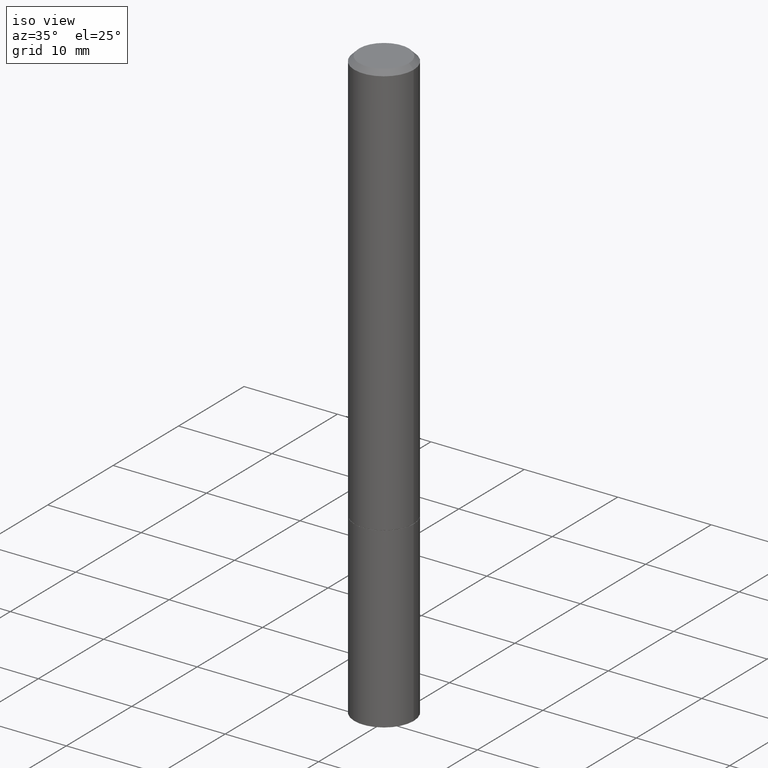
[diagram: clean part render]
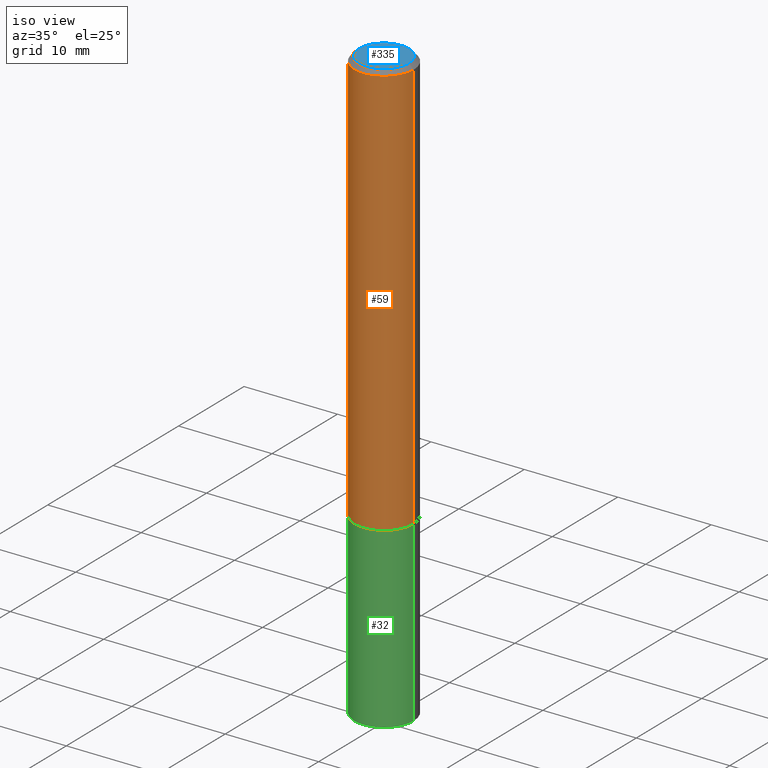
[diagram: same view with three faces highlighted in distinct colors, each labeled with its STEP entity id]
A machine part, iso view with three faces highlighted in distinct colors.
Their STEP definitions:

[orange] entity #59 — the highlighted cylindrical surface (edge-blend (fillet) strip) has radius 3.175 mm, axis along (-0, 0, 1).
#5 = CYLINDRICAL_SURFACE ( 'NONE', #26, 0.1249999999999999029 ) ;
#26 = AXIS2_PLACEMENT_3D ( 'NONE', #192, #254, #126 ) ;
#30 = EDGE_CURVE ( 'NONE', #213, #282, #301, .T. ) ;
#34 = DIRECTION ( 'NONE',  ( -2.445468806185136597E-29, 3.491481338843145583E-15, 1.000000000000000000 ) ) ;
#59 = ADVANCED_FACE ( 'NONE', ( #91 ), #5, .T. ) ;
#82 = LINE ( 'NONE', #286, #136 ) ;
#91 = FACE_OUTER_BOUND ( 'NONE', #313, .T. ) ;
#96 = DIRECTION ( 'NONE',  ( 1.000000000000000000, -6.982962677686266711E-15, 0.000000000000000000 ) ) ;
#102 = CARTESIAN_POINT ( 'NONE',  ( 0.1250000000000000000, -6.979471196347445792E-15, -1.749000000000000110 ) ) ;
#120 = CARTESIAN_POINT ( 'NONE',  ( 4.277124942017804562E-29, -6.106600861636661664E-15, -1.749000000000000110 ) ) ;
#125 = EDGE_CURVE ( 'NONE', #303, #205, #331, .T. ) ;
#126 = DIRECTION ( 'NONE',  ( 1.000000000000000000, -6.982962677686266711E-15, 4.876176775795935793E-29 ) ) ;
#129 = DIRECTION ( 'NONE',  ( -2.445468806185136597E-29, 3.491481338843145583E-15, 1.000000000000000000 ) ) ;
#130 = ORIENTED_EDGE ( 'NONE', *, *, #173, .F. ) ;
#134 = CARTESIAN_POINT ( 'NONE',  ( -0.1249999999999999029, 8.881784197001245421E-16, -6.148668862818627323E-30 ) ) ;
#136 = VECTOR ( 'NONE', #144, 39.37007874015748143 ) ;
#144 = DIRECTION ( 'NONE',  ( -2.445468806185136877E-29, 3.491481338843145188E-15, 1.000000000000000000 ) ) ;
#146 = AXIS2_PLACEMENT_3D ( 'NONE', #253, #34, #96 ) ;
#152 = EDGE_CURVE ( 'NONE', #205, #282, #82, .T. ) ;
#173 = EDGE_CURVE ( 'NONE', #303, #213, #239, .T. ) ;
#182 = CARTESIAN_POINT ( 'NONE',  ( 0.1249999999999997918, -9.273918764983031658E-16, -0.02000000000000003511 ) ) ;
#184 = AXIS2_PLACEMENT_3D ( 'NONE', #120, #129, #222 ) ;
#192 = CARTESIAN_POINT ( 'NONE',  ( 0.000000000000000000, 0.000000000000000000, 0.000000000000000000 ) ) ;
#198 = DIRECTION ( 'NONE',  ( -2.445468806185136877E-29, 3.491481338843145188E-15, 1.000000000000000000 ) ) ;
#205 = VERTEX_POINT ( 'NONE', #102 ) ;
#213 = VERTEX_POINT ( 'NONE', #230 ) ;
#222 = DIRECTION ( 'NONE',  ( 1.000000000000000000, -6.982962677686270655E-15, 0.000000000000000000 ) ) ;
#230 = CARTESIAN_POINT ( 'NONE',  ( -0.1249999999999997918, 8.030407079339188573E-16, -0.02000000000000003511 ) ) ;
#232 = ORIENTED_EDGE ( 'NONE', *, *, #30, .F. ) ;
#239 = LINE ( 'NONE', #134, #277 ) ;
#253 = CARTESIAN_POINT ( 'NONE',  ( 4.890937612370281041E-31, -6.982962677686302702E-17, -0.02000000000000003511 ) ) ;
#254 = DIRECTION ( 'NONE',  ( -2.445468806185136597E-29, 3.491481338843145583E-15, 1.000000000000000000 ) ) ;
#268 = ORIENTED_EDGE ( 'NONE', *, *, #152, .T. ) ;
#277 = VECTOR ( 'NONE', #198, 39.37007874015748143 ) ;
#282 = VERTEX_POINT ( 'NONE', #182 ) ;
#286 = CARTESIAN_POINT ( 'NONE',  ( 0.1249999999999999029, -8.728703347107826486E-16, 6.095220969744914837E-30 ) ) ;
#301 = CIRCLE ( 'NONE', #146, 0.1249999999999997918 ) ;
#303 = VERTEX_POINT ( 'NONE', #322 ) ;
#313 = EDGE_LOOP ( 'NONE', ( #130, #340, #268, #232 ) ) ;
#322 = CARTESIAN_POINT ( 'NONE',  ( -0.1250000000000000278, -2.200036824506634488E-15, -1.749000000000000110 ) ) ;
#331 = CIRCLE ( 'NONE', #184, 0.1250000000000000000 ) ;
#340 = ORIENTED_EDGE ( 'NONE', *, *, #125, .T. ) ;

[blue] entity #335 — the highlighted planar face has unit normal (0, -0, -1).
#22 = VERTEX_POINT ( 'NONE', #117 ) ;
#28 = EDGE_CURVE ( 'NONE', #131, #22, #92, .T. ) ;
#65 = EDGE_CURVE ( 'NONE', #22, #131, #348, .T. ) ;
#92 = CIRCLE ( 'NONE', #270, 0.1049999999999998018 ) ;
#117 = CARTESIAN_POINT ( 'NONE',  ( 0.1049999999999998018, -8.238720831321562839E-16, 5.444276250344140956E-30 ) ) ;
#131 = VERTEX_POINT ( 'NONE', #267 ) ;
#133 = PLANE ( 'NONE',  #361 ) ;
#138 = EDGE_LOOP ( 'NONE', ( #299, #157 ) ) ;
#145 = DIRECTION ( 'NONE',  ( -2.445468806185136597E-29, 3.491481338843145583E-15, 1.000000000000000000 ) ) ;
#157 = ORIENTED_EDGE ( 'NONE', *, *, #65, .T. ) ;
#167 = CARTESIAN_POINT ( 'NONE',  ( 0.000000000000000000, 0.000000000000000000, 0.000000000000000000 ) ) ;
#169 = DIRECTION ( 'NONE',  ( -1.000000000000000000, 6.982962677686265922E-15, -4.876176775795935793E-29 ) ) ;
#189 = DIRECTION ( 'NONE',  ( 1.000000000000000000, -6.982962677686265922E-15, 4.876176775795935793E-29 ) ) ;
#197 = DIRECTION ( 'NONE',  ( 2.438088387897960049E-29, -3.491481338843145188E-15, -1.000000000000000000 ) ) ;
#251 = AXIS2_PLACEMENT_3D ( 'NONE', #305, #351, #189 ) ;
#264 = FACE_OUTER_BOUND ( 'NONE', #138, .T. ) ;
#267 = CARTESIAN_POINT ( 'NONE',  ( -0.1049999999999998018, 7.681258945454876027E-16, -5.249639473182157468E-30 ) ) ;
#270 = AXIS2_PLACEMENT_3D ( 'NONE', #167, #145, #272 ) ;
#272 = DIRECTION ( 'NONE',  ( 1.000000000000000000, -6.982962677686265922E-15, 4.876176775795935793E-29 ) ) ;
#292 = CARTESIAN_POINT ( 'NONE',  ( 7.332110811570565452E-16, 0.1049999999999998018, -3.666055405785296038E-16 ) ) ;
#299 = ORIENTED_EDGE ( 'NONE', *, *, #28, .T. ) ;
#305 = CARTESIAN_POINT ( 'NONE',  ( 0.000000000000000000, 0.000000000000000000, 0.000000000000000000 ) ) ;
#335 = ADVANCED_FACE ( 'NONE', ( #264 ), #133, .F. ) ;
#348 = CIRCLE ( 'NONE', #251, 0.1049999999999998018 ) ;
#351 = DIRECTION ( 'NONE',  ( -2.445468806185136597E-29, 3.491481338843145583E-15, 1.000000000000000000 ) ) ;
#361 = AXIS2_PLACEMENT_3D ( 'NONE', #292, #197, #169 ) ;

[green] entity #32 — the highlighted cylindrical surface (edge-blend (fillet) strip) has radius 3.175 mm, axis along (-0, 0, 1).
#32 = ADVANCED_FACE ( 'NONE', ( #97 ), #325, .T. ) ;
#36 = ORIENTED_EDGE ( 'NONE', *, *, #330, .F. ) ;
#42 = VERTEX_POINT ( 'NONE', #279 ) ;
#44 = AXIS2_PLACEMENT_3D ( 'NONE', #132, #195, #234 ) ;
#56 = EDGE_LOOP ( 'NONE', ( #278, #148, #181, #36 ) ) ;
#66 = CIRCLE ( 'NONE', #161, 0.1250000000000000000 ) ;
#73 = DIRECTION ( 'NONE',  ( 1.000000000000000000, -6.982962677686266711E-15, 4.876176775795935793E-29 ) ) ;
#97 = FACE_OUTER_BOUND ( 'NONE', #56, .T. ) ;
#104 = VERTEX_POINT ( 'NONE', #201 ) ;
#114 = CARTESIAN_POINT ( 'NONE',  ( 0.1250000000000000000, -9.601573681818648281E-15, -2.500000000000000000 ) ) ;
#132 = CARTESIAN_POINT ( 'NONE',  ( 6.113672015462842613E-29, -8.728703347107864943E-15, -2.500000000000000000 ) ) ;
#142 = CARTESIAN_POINT ( 'NONE',  ( 4.279570410823989044E-29, -6.110092342975505460E-15, -1.750000000000000222 ) ) ;
#143 = EDGE_CURVE ( 'NONE', #42, #363, #214, .T. ) ;
#148 = ORIENTED_EDGE ( 'NONE', *, *, #183, .T. ) ;
#161 = AXIS2_PLACEMENT_3D ( 'NONE', #142, #172, #212 ) ;
#164 = CARTESIAN_POINT ( 'NONE',  ( -0.1250000000000000000, -6.531219425341559180E-15, -1.750000000000000222 ) ) ;
#172 = DIRECTION ( 'NONE',  ( -2.445468806185136597E-29, 3.491481338843145583E-15, 1.000000000000000000 ) ) ;
#180 = EDGE_CURVE ( 'NONE', #339, #104, #228, .T. ) ;
#181 = ORIENTED_EDGE ( 'NONE', *, *, #180, .T. ) ;
#183 = EDGE_CURVE ( 'NONE', #42, #339, #321, .T. ) ;
#194 = DIRECTION ( 'NONE',  ( -2.445468806185136877E-29, 3.491481338843145188E-15, 1.000000000000000000 ) ) ;
#195 = DIRECTION ( 'NONE',  ( -2.445468806185136597E-29, 3.491481338843145583E-15, 1.000000000000000000 ) ) ;
#201 = CARTESIAN_POINT ( 'NONE',  ( 0.1250000000000000000, -6.982962677686288010E-15, -1.750000000000000222 ) ) ;
#204 = CARTESIAN_POINT ( 'NONE',  ( 0.1250000000000000000, -8.728703347107833388E-16, 6.095220969744919741E-30 ) ) ;
#212 = DIRECTION ( 'NONE',  ( 1.000000000000000000, -6.982962677686262766E-15, 0.000000000000000000 ) ) ;
#214 = LINE ( 'NONE', #218, #255 ) ;
#218 = CARTESIAN_POINT ( 'NONE',  ( -0.1250000000000000000, 8.881784197001252323E-16, -6.148668862818632227E-30 ) ) ;
#220 = CARTESIAN_POINT ( 'NONE',  ( 0.000000000000000000, 0.000000000000000000, 0.000000000000000000 ) ) ;
#228 = LINE ( 'NONE', #204, #326 ) ;
#234 = DIRECTION ( 'NONE',  ( 1.000000000000000000, -6.982962677686270655E-15, 0.000000000000000000 ) ) ;
#255 = VECTOR ( 'NONE', #194, 39.37007874015748143 ) ;
#278 = ORIENTED_EDGE ( 'NONE', *, *, #143, .F. ) ;
#279 = CARTESIAN_POINT ( 'NONE',  ( -0.1250000000000000000, -6.531219425341559180E-15, -2.500000000000000000 ) ) ;
#315 = DIRECTION ( 'NONE',  ( -2.445468806185136877E-29, 3.491481338843145188E-15, 1.000000000000000000 ) ) ;
#321 = CIRCLE ( 'NONE', #44, 0.1250000000000000000 ) ;
#325 = CYLINDRICAL_SURFACE ( 'NONE', #356, 0.1250000000000000000 ) ;
#326 = VECTOR ( 'NONE', #315, 39.37007874015748143 ) ;
#330 = EDGE_CURVE ( 'NONE', #363, #104, #66, .T. ) ;
#339 = VERTEX_POINT ( 'NONE', #114 ) ;
#349 = DIRECTION ( 'NONE',  ( -2.445468806185136597E-29, 3.491481338843145583E-15, 1.000000000000000000 ) ) ;
#356 = AXIS2_PLACEMENT_3D ( 'NONE', #220, #349, #73 ) ;
#363 = VERTEX_POINT ( 'NONE', #164 ) ;